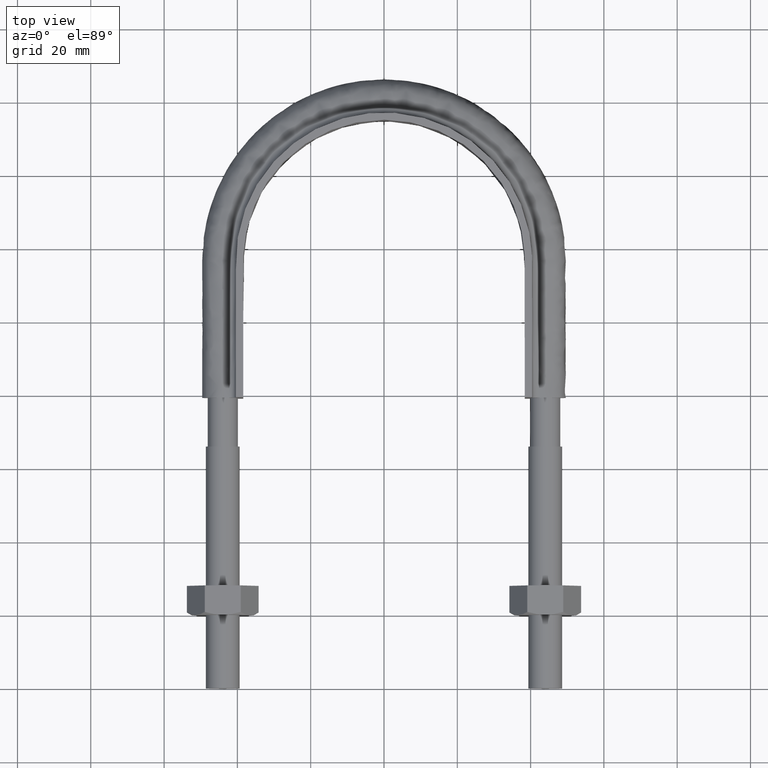
[diagram: clean part render]
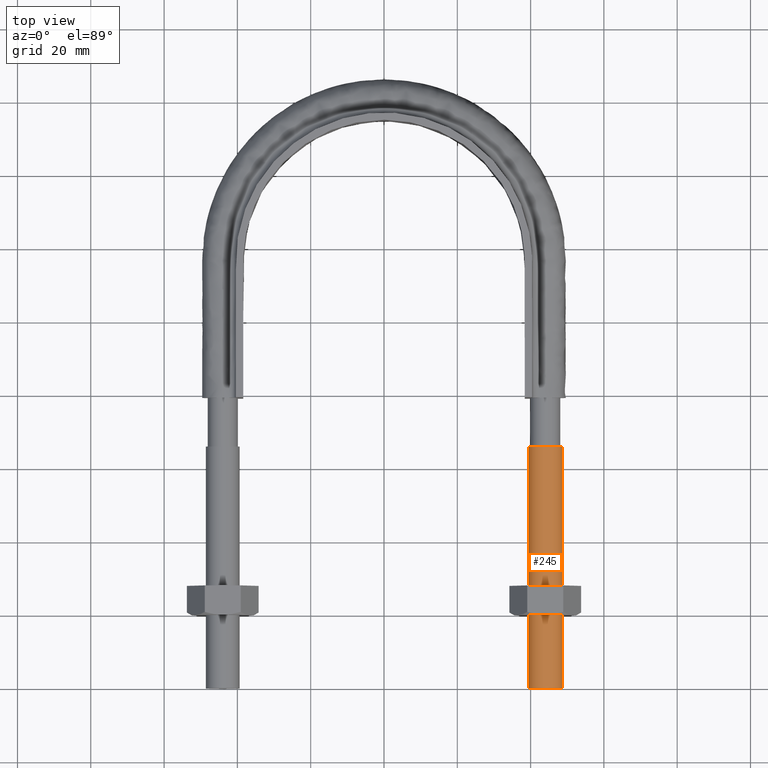
[diagram: same view with one face highlighted and labeled with its STEP entity id]
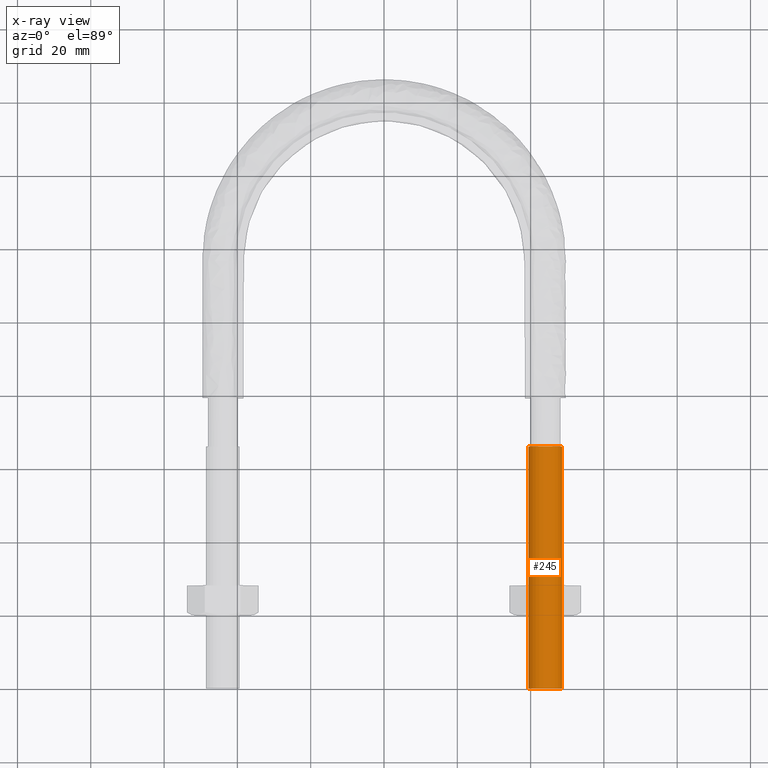
[diagram: x-ray of the same camera — body ghosted, the highlighted face saturated]
A machine part, top view. The second image highlights one B-rep face of the part: STEP entity #245.
The next image is the same camera in x-ray: the body ghosted, the highlighted face saturated — about 0% of this face is hidden behind the body in this view.
In plain terms, the highlighted cylindrical surface (bore or boss wall) has radius 4.6 mm, axis along (-0, -1, -0).
Its self-contained STEP definition (entity closure, byte-faithful):
#245 = ADVANCED_FACE( '', ( #356, #357 ), #358, .T. );
#356 = FACE_OUTER_BOUND( '', #1353, .T. );
#357 = FACE_OUTER_BOUND( '', #1354, .T. );
#358 = CYLINDRICAL_SURFACE( '', #1355, 4.60000000000000 );
#1353 = EDGE_LOOP( '', ( #1637 ) );
#1354 = EDGE_LOOP( '', ( #1638 ) );
#1355 = AXIS2_PLACEMENT_3D( '', #1639, #1640, #1641 );
#1637 = ORIENTED_EDGE( '', *, *, #2049, .F. );
#1638 = ORIENTED_EDGE( '', *, *, #2048, .T. );
#1639 = CARTESIAN_POINT( '', ( 44.0000000000000, 66.0000000000000, 4.07181612645940E-015 ) );
#1640 = DIRECTION( '', ( -2.44921270764475E-016, -1.00000000000000, -6.12303176911189E-017 ) );
#1641 = DIRECTION( '', ( 1.00000000000000, -2.44921270764475E-016, -7.49830360911069E-033 ) );
#2048 = EDGE_CURVE( '', #2227, #2227, #2228, .T. );
#2049 = EDGE_CURVE( '', #2229, #2229, #2230, .T. );
#2227 = VERTEX_POINT( '', #2736 );
#2228 = CIRCLE( '', #2737, 4.60000000000000 );
#2229 = VERTEX_POINT( '', #2738 );
#2230 = CIRCLE( '', #2739, 4.60000000000000 );
#2736 = CARTESIAN_POINT( '', ( 48.6000000000000, 66.0000000000000, 4.07181612645940E-015 ) );
#2737 = AXIS2_PLACEMENT_3D( '', #3127, #3128, #3129 );
#2738 = CARTESIAN_POINT( '', ( 48.6000000000000, -1.19031737591535E-014, 3.06151588455591E-017 ) );
#2739 = AXIS2_PLACEMENT_3D( '', #3130, #3131, #3132 );
#3127 = CARTESIAN_POINT( '', ( 44.0000000000000, 66.0000000000000, 4.07181612645940E-015 ) );
#3128 = DIRECTION( '', ( -2.44921270764475E-016, -1.00000000000000, -6.12303176911189E-017 ) );
#3129 = DIRECTION( '', ( 1.00000000000000, -2.44921270764475E-016, -7.49830360911069E-033 ) );
#3130 = CARTESIAN_POINT( '', ( 44.0000000000000, -1.07765359136369E-014, 3.06151588455591E-017 ) );
#3131 = DIRECTION( '', ( -2.44921270764475E-016, -1.00000000000000, -6.12303176911189E-017 ) );
#3132 = DIRECTION( '', ( 1.00000000000000, -2.44921270764475E-016, -7.49830360911069E-033 ) );